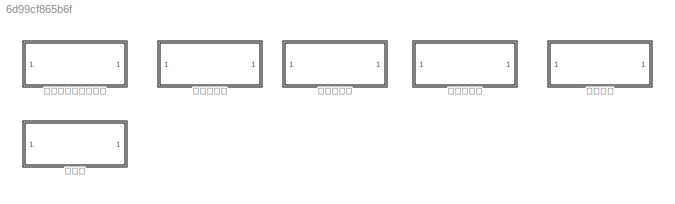
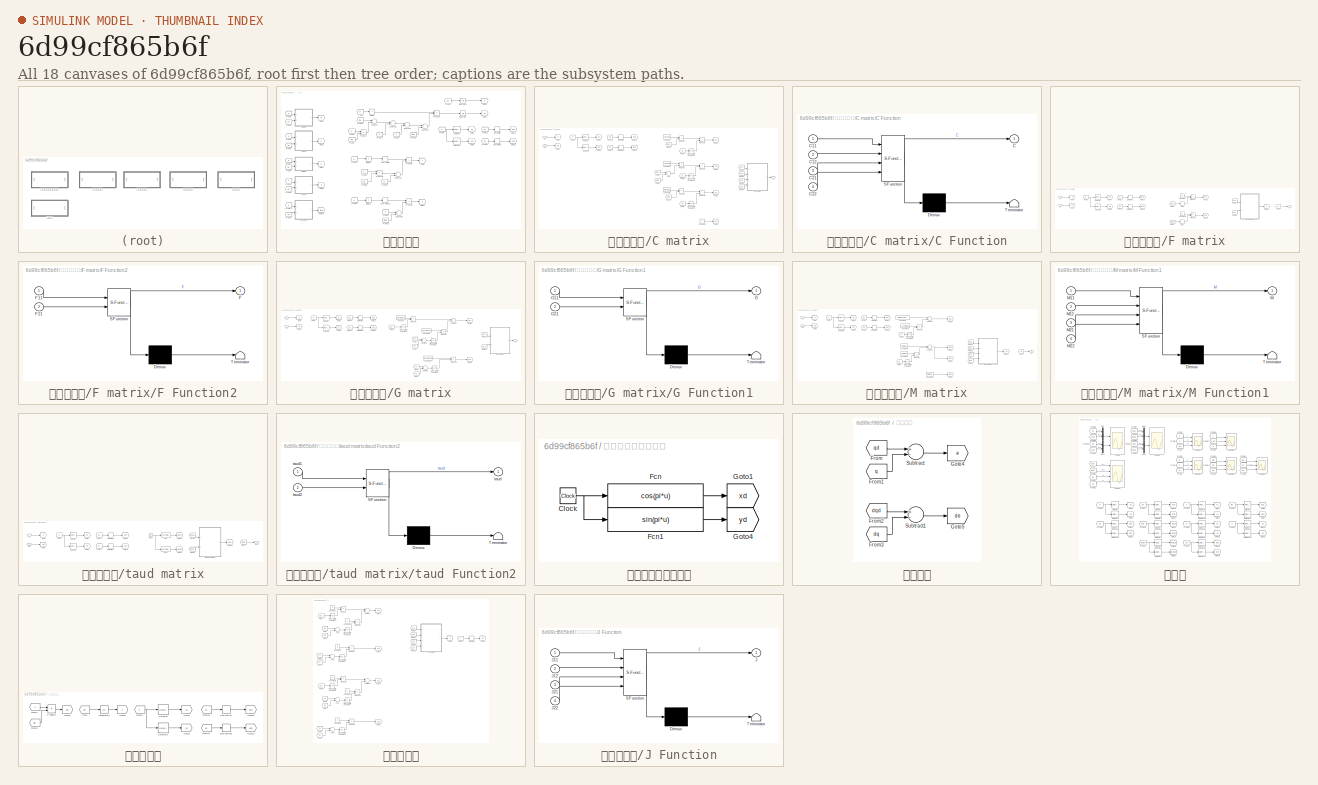
[diagram: thumbnail index - all 18 canvases of the model, root first then tree order]
MODEL slx_6d99cf865b6f
KIND model
CONFIG AbsTol = auto
CONFIG FixedStep = 0.005
CONFIG MaxStep = auto
CONFIG MinStep = auto
CONFIG RelTol = 1e-3
CONFIG SampleTimeConstraint = Unconstrained
CONFIG Solver = ode4
CONFIG SolverMode = Auto
CONFIG SolverName = ode4
CONFIG StartTime = 0.0
CONFIG StopTime = 10
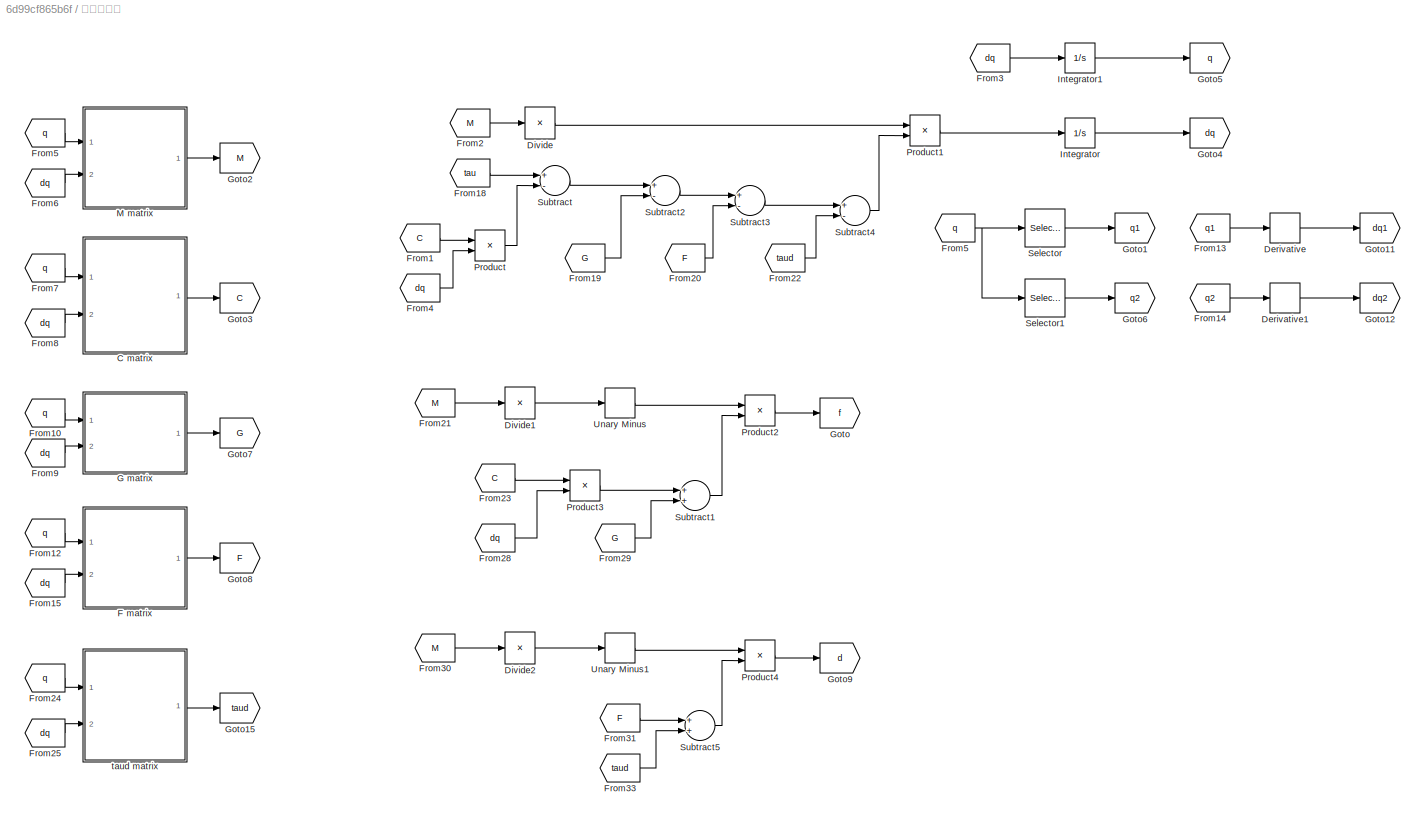
BLOCK [SubSystem] 动力学方程
  Ports = []
  RequestExecContextInheritance = off
  Variant = off
BLOCK [SubSystem] 动力学方程/C matrix
  Ports = [2, 1]
  RequestExecContextInheritance = off
  Variant = off
BLOCK [Sum] 动力学方程/C matrix/Add
  InputSameDT = off
  OutDataTypeStr = Inherit: Inherit via internal rule
  Ports = [2, 1]
  SaturateOnIntegerOverflow = off
BLOCK [Outport] 动力学方程/C matrix/C
  IconDisplay = Port number
BLOCK [SubSystem] 动力学方程/C matrix/C Function
  ErrorFcn = Stateflow.Translate.translate
  PermitHierarchicalResolution = ExplicitOnly
  Ports = [4, 1]
  RequestExecContextInheritance = off
  SFBlockType = MATLAB Function
  TreatAsAtomicUnit = on
  Variant = off
BLOCK [Demux] 动力学方程/C matrix/C Function/ Demux 
  Outputs = 1
  Ports = [1, 1]
BLOCK [S-Function] 动力学方程/C matrix/C Function/ SFunction 
  EnableBusSupport = on
  FunctionName = sf_sfun
  PortCounts = [4 2]
  Ports = [4, 2]
  SFunctionDeploymentMode = off
  Tag = Stateflow S-Function common_2 3
BLOCK [Terminator] 动力学方程/C matrix/C Function/ Terminator 
BLOCK [Outport] 动力学方程/C matrix/C Function/C
  IconDisplay = Port number
BLOCK [Inport] 动力学方程/C matrix/C Function/C11
  IconDisplay = Port number
BLOCK [Inport] 动力学方程/C matrix/C Function/C12
  IconDisplay = Port number
  Port = 2
BLOCK [Inport] 动力学方程/C matrix/C Function/C21
  IconDisplay = Port number
  Port = 3
BLOCK [Inport] 动力学方程/C matrix/C Function/C22
  IconDisplay = Port number
  Port = 4
BLOCK [Constant] 动力学方程/C matrix/Constant
  Value = -para.p3
BLOCK [Constant] 动力学方程/C matrix/Constant1
  Value = -para.p3
BLOCK [Constant] 动力学方程/C matrix/Constant2
  Value = para.p3
BLOCK [Constant] 动力学方程/C matrix/Constant3
  Value = 0
BLOCK [Derivative] 动力学方程/C matrix/Derivative
BLOCK [Derivative] 动力学方程/C matrix/Derivative1
BLOCK [From] 动力学方程/C matrix/From1
  GotoTag = dq2
BLOCK [From] 动力学方程/C matrix/From13
  GotoTag = q1
BLOCK [From] 动力学方程/C matrix/From14
  GotoTag = q2
BLOCK [From] 动力学方程/C matrix/From2
  GotoTag = q2
BLOCK [From] 动力学方程/C matrix/From22
  GotoTag = C12
BLOCK [From] 动力学方程/C matrix/From23
  GotoTag = C21
BLOCK [From] 动力学方程/C matrix/From24
  GotoTag = C22
BLOCK [From] 动力学方程/C matrix/From25
  GotoTag = C11
BLOCK [From] 动力学方程/C matrix/From3
  GotoTag = dq1
BLOCK [From] 动力学方程/C matrix/From4
  GotoTag = dq2
BLOCK [From] 动力学方程/C matrix/From5
  GotoTag = q2
BLOCK [From] 动力学方程/C matrix/From5 
  GotoTag = q
BLOCK [From] 动力学方程/C matrix/From6
  GotoTag = dq1
BLOCK [From] 动力学方程/C matrix/From7
  GotoTag = q2
BLOCK [Goto] 动力学方程/C matrix/Goto
  GotoTag = q
BLOCK [Goto] 动力学方程/C matrix/Goto1
  GotoTag = dq
BLOCK [Goto] 动力学方程/C matrix/Goto11
  GotoTag = dq1
BLOCK [Goto] 动力学方程/C matrix/Goto12
  GotoTag = dq2
BLOCK [Goto] 动力学方程/C matrix/Goto3
  GotoTag = C11
BLOCK [Goto] 动力学方程/C matrix/Goto4
  GotoTag = C12
BLOCK [Goto] 动力学方程/C matrix/Goto5
  GotoTag = C21
BLOCK [Goto] 动力学方程/C matrix/Goto6
  GotoTag = C22
BLOCK [Goto] 动力学方程/C matrix/Goto7
  GotoTag = q1
BLOCK [Goto] 动力学方程/C matrix/Goto8
  GotoTag = q2
BLOCK [Product] 动力学方程/C matrix/Product1
  InputSameDT = off
  OutDataTypeStr = Inherit: Inherit via internal rule
  Ports = [2, 1]
  RndMeth = Floor
  SaturateOnIntegerOverflow = off
BLOCK [Product] 动力学方程/C matrix/Product2
  InputSameDT = off
  OutDataTypeStr = Inherit: Inherit via internal rule
  Ports = [2, 1]
  RndMeth = Floor
  SaturateOnIntegerOverflow = off
BLOCK [Product] 动力学方程/C matrix/Product3
  InputSameDT = off
  OutDataTypeStr = Inherit: Inherit via internal rule
  Ports = [2, 1]
  RndMeth = Floor
  SaturateOnIntegerOverflow = off
BLOCK [Product] 动力学方程/C matrix/Product4
  InputSameDT = off
  OutDataTypeStr = Inherit: Inherit via internal rule
  Ports = [2, 1]
  RndMeth = Floor
  SaturateOnIntegerOverflow = off
BLOCK [Product] 动力学方程/C matrix/Product5
  InputSameDT = off
  OutDataTypeStr = Inherit: Inherit via internal rule
  Ports = [2, 1]
  RndMeth = Floor
  SaturateOnIntegerOverflow = off
BLOCK [Product] 动力学方程/C matrix/Product6
  InputSameDT = off
  OutDataTypeStr = Inherit: Inherit via internal rule
  Ports = [2, 1]
  RndMeth = Floor
  SaturateOnIntegerOverflow = off
BLOCK [Selector] 动力学方程/C matrix/Selector
  IndexOptions = Index vector (dialog)
  Indices = [1]
  InputPortWidth = 2
  OutputSizes = 1
  Ports = [1, 1]
BLOCK [Selector] 动力学方程/C matrix/Selector1
  IndexOptions = Index vector (dialog)
  Indices = [2]
  InputPortWidth = 2
  OutputSizes = 1
  Ports = [1, 1]
BLOCK [Trigonometry] 动力学方程/C matrix/Tri gonometric Function3
  Ports = [1, 1]
BLOCK [Trigonometry] 动力学方程/C matrix/Trigonometric Function1
  Ports = [1, 1]
BLOCK [Trigonometry] 动力学方程/C matrix/Trigonometric Function2
  Ports = [1, 1]
BLOCK [Inport] 动力学方程/C matrix/dq
  IconDisplay = Port number
  Port = 2
BLOCK [Inport] 动力学方程/C matrix/q
  IconDisplay = Port number
BLOCK [Derivative] 动力学方程/Derivative
BLOCK [Derivative] 动力学方程/Derivative1
BLOCK [Product] 动力学方程/Divide
  InputSameDT = off
  Inputs = /
  Multiplication = Matrix(*)
  OutDataTypeStr = Inherit: Inherit via internal rule
  Ports = [1, 1]
  RndMeth = Floor
  SaturateOnIntegerOverflow = off
BLOCK [Product] 动力学方程/Divide1
  InputSameDT = off
  Inputs = /
  Multiplication = Matrix(*)
  OutDataTypeStr = Inherit: Inherit via internal rule
  Ports = [1, 1]
  RndMeth = Floor
  SaturateOnIntegerOverflow = off
BLOCK [Product] 动力学方程/Divide2
  InputSameDT = off
  Inputs = /
  Multiplication = Matrix(*)
  OutDataTypeStr = Inherit: Inherit via internal rule
  Ports = [1, 1]
  RndMeth = Floor
  SaturateOnIntegerOverflow = off
BLOCK [SubSystem] 动力学方程/F matrix
  Ports = [2, 1]
  RequestExecContextInheritance = off
  Variant = off
BLOCK [Constant] 动力学方程/F matrix/Constant
  Value = 0.2
BLOCK [Constant] 动力学方程/F matrix/Constant1
  Value = 0.2
BLOCK [Derivative] 动力学方程/F matrix/Derivative
BLOCK [Derivative] 动力学方程/F matrix/Derivative1
BLOCK [Outport] 动力学方程/F matrix/F
  IconDisplay = Port number
BLOCK [SubSystem] 动力学方程/F matrix/F Function2
  ErrorFcn = Stateflow.Translate.translate
  PermitHierarchicalResolution = ExplicitOnly
  Ports = [2, 1]
  RequestExecContextInheritance = off
  SFBlockType = MATLAB Function
  TreatAsAtomicUnit = on
  Variant = off
BLOCK [Demux] 动力学方程/F matrix/F Function2/ Demux 
  Outputs = 1
  Ports = [1, 1]
BLOCK [S-Function] 动力学方程/F matrix/F Function2/ SFunction 
  EnableBusSupport = on
  FunctionName = sf_sfun
  PortCounts = [2 2]
  Ports = [2, 2]
  SFunctionDeploymentMode = off
  Tag = Stateflow S-Function common_2 5
BLOCK [Terminator] 动力学方程/F matrix/F Function2/ Terminator 
BLOCK [Outport] 动力学方程/F matrix/F Function2/F
  IconDisplay = Port number
BLOCK [Inport] 动力学方程/F matrix/F Function2/F11
  IconDisplay = Port number
BLOCK [Inport] 动力学方程/F matrix/F Function2/F21
  IconDisplay = Port number
  Port = 2
BLOCK [From] 动力学方程/F matrix/From
  GotoTag = F
BLOCK [From] 动力学方程/F matrix/From1
  GotoTag = dq1
BLOCK [From] 动力学方程/F matrix/From13
  GotoTag = q1
BLOCK [From] 动力学方程/F matrix/From14
  GotoTag = q2
BLOCK [From] 动力学方程/F matrix/From19
  GotoTag = F11
BLOCK [From] 动力学方程/F matrix/From2
  GotoTag = dq2
BLOCK [From] 动力学方程/F matrix/From39
  GotoTag = F21
BLOCK [From] 动力学方程/F matrix/From5 
  GotoTag = q
BLOCK [Goto] 动力学方程/F matrix/Goto
  GotoTag = q
BLOCK [Goto] 动力学方程/F matrix/Goto1
  GotoTag = dq
BLOCK [Goto] 动力学方程/F matrix/Goto11
  GotoTag = dq1
BLOCK [Goto] 动力学方程/F matrix/Goto12
  GotoTag = dq2
BLOCK [Goto] 动力学方程/F matrix/Goto2
  GotoTag = F11
BLOCK [Goto] 动力学方程/F matrix/Goto23
  GotoTag = F
BLOCK [Goto] 动力学方程/F matrix/Goto3
  GotoTag = F21
BLOCK [Goto] 动力学方程/F matrix/Goto7
  GotoTag = q1
BLOCK [Goto] 动力学方程/F matrix/Goto8
  GotoTag = q2
BLOCK [Product] 动力学方程/F matrix/Product
  InputSameDT = off
  OutDataTypeStr = Inherit: Inherit via internal rule
  Ports = [2, 1]
  RndMeth = Floor
  SaturateOnIntegerOverflow = off
BLOCK [Product] 动力学方程/F matrix/Product1
  InputSameDT = off
  OutDataTypeStr = Inherit: Inherit via internal rule
  Ports = [2, 1]
  RndMeth = Floor
  SaturateOnIntegerOverflow = off
BLOCK [Selector] 动力学方程/F matrix/Selector
  IndexOptions = Index vector (dialog)
  Indices = [1]
  InputPortWidth = 2
  OutputSizes = 1
  Ports = [1, 1]
BLOCK [Selector] 动力学方程/F matrix/Selector1
  IndexOptions = Index vector (dialog)
  Indices = [2]
  InputPortWidth = 2
  OutputSizes = 1
  Ports = [1, 1]
BLOCK [Signum] 动力学方程/F matrix/Sign
BLOCK [Signum] 动力学方程/F matrix/Sign1
BLOCK [Inport] 动力学方程/F matrix/dq
  IconDisplay = Port number
  Port = 2
BLOCK [Inport] 动力学方程/F matrix/q
  IconDisplay = Port number
BLOCK [From] 动力学方程/From1
  GotoTag = C
  TagVisibility = global
BLOCK [From] 动力学方程/From10
  GotoTag = q
  TagVisibility = global
BLOCK [From] 动力学方程/From12
  GotoTag = q
  TagVisibility = global
BLOCK [From] 动力学方程/From13
  GotoTag = q1
  TagVisibility = global
BLOCK [From] 动力学方程/From14
  GotoTag = q2
  TagVisibility = global
BLOCK [From] 动力学方程/From15
  GotoTag = dq
  TagVisibility = global
BLOCK [From] 动力学方程/From18
  GotoTag = tau
BLOCK [From] 动力学方程/From19
  GotoTag = G
  TagVisibility = global
BLOCK [From] 动力学方程/From2
  GotoTag = M
  TagVisibility = global
BLOCK [From] 动力学方程/From20
  GotoTag = F
  TagVisibility = global
BLOCK [From] 动力学方程/From21
  GotoTag = M
  TagVisibility = global
BLOCK [From] 动力学方程/From22
  GotoTag = taud
  TagVisibility = global
BLOCK [From] 动力学方程/From23
  GotoTag = C
  TagVisibility = global
BLOCK [From] 动力学方程/From24
  GotoTag = q
  TagVisibility = global
BLOCK [From] 动力学方程/From25
  GotoTag = dq
  TagVisibility = global
BLOCK [From] 动力学方程/From28
  GotoTag = dq
  TagVisibility = global
BLOCK [From] 动力学方程/From29
  GotoTag = G
  TagVisibility = global
BLOCK [From] 动力学方程/From3
  GotoTag = dq
  TagVisibility = global
BLOCK [From] 动力学方程/From30
  GotoTag = M
  TagVisibility = global
BLOCK [From] 动力学方程/From31
  GotoTag = F
  TagVisibility = global
BLOCK [From] 动力学方程/From33
  GotoTag = taud
  TagVisibility = global
BLOCK [From] 动力学方程/From4
  GotoTag = dq
  TagVisibility = global
BLOCK [From] 动力学方程/From5
  GotoTag = q
  TagVisibility = global
BLOCK [From] 动力学方程/From5 
  GotoTag = q
  TagVisibility = global
BLOCK [From] 动力学方程/From6
  GotoTag = dq
  TagVisibility = global
BLOCK [From] 动力学方程/From7
  GotoTag = q
  TagVisibility = global
BLOCK [From] 动力学方程/From8
  GotoTag = dq
  TagVisibility = global
BLOCK [From] 动力学方程/From9
  GotoTag = dq
  TagVisibility = global
BLOCK [SubSystem] 动力学方程/G matrix
  Ports = [2, 1]
  RequestExecContextInheritance = off
  Variant = off
BLOCK [Constant] 动力学方程/G matrix/Constant
  Value = para.p4*g
BLOCK [Constant] 动力学方程/G matrix/Constant1
  Value = para.p5*g
BLOCK [Constant] 动力学方程/G matrix/Constant2
  Value = para.p5*g
BLOCK [Derivative] 动力学方程/G matrix/Derivative
BLOCK [Derivative] 动力学方程/G matrix/Derivative1
BLOCK [From] 动力学方程/G matrix/From
  GotoTag = q1
BLOCK [From] 动力学方程/G matrix/From1
  GotoTag = q1
BLOCK [From] 动力学方程/G matrix/From10
  GotoTag = G21
BLOCK [From] 动力学方程/G matrix/From12
  GotoTag = G11
BLOCK [From] 动力学方程/G matrix/From13
  GotoTag = q1
BLOCK [From] 动力学方程/G matrix/From14
  GotoTag = q2
BLOCK [From] 动力学方程/G matrix/From2
  GotoTag = q1
BLOCK [From] 动力学方程/G matrix/From3
  GotoTag = q2
BLOCK [From] 动力学方程/G matrix/From4
  GotoTag = q2
BLOCK [From] 动力学方程/G matrix/From5 
  GotoTag = q
BLOCK [Outport] 动力学方程/G matrix/G
  IconDisplay = Port number
BLOCK [SubSystem] 动力学方程/G matrix/G Function1
  ErrorFcn = Stateflow.Translate.translate
  PermitHierarchicalResolution = ExplicitOnly
  Ports = [2, 1]
  RequestExecContextInheritance = off
  SFBlockType = MATLAB Function
  TreatAsAtomicUnit = on
  Variant = off
BLOCK [Demux] 动力学方程/G matrix/G Function1/ Demux 
  Outputs = 1
  Ports = [1, 1]
BLOCK [S-Function] 动力学方程/G matrix/G Function1/ SFunction 
  EnableBusSupport = on
  FunctionName = sf_sfun
  PortCounts = [2 2]
  Ports = [2, 2]
  SFunctionDeploymentMode = off
  Tag = Stateflow S-Function common_2 2
BLOCK [Terminator] 动力学方程/G matrix/G Function1/ Terminator 
BLOCK [Outport] 动力学方程/G matrix/G Function1/G
  IconDisplay = Port number
BLOCK [Inport] 动力学方程/G matrix/G Function1/G11
  IconDisplay = Port number
BLOCK [Inport] 动力学方程/G matrix/G Function1/G21
  IconDisplay = Port number
  Port = 2
BLOCK [Goto] 动力学方程/G matrix/Goto
  GotoTag = q
BLOCK [Goto] 动力学方程/G matrix/Goto1
  GotoTag = G21
BLOCK [Goto] 动力学方程/G matrix/Goto11
  GotoTag = dq1
BLOCK [Goto] 动力学方程/G matrix/Goto12
  GotoTag = dq2
BLOCK [Goto] 动力学方程/G matrix/Goto2
  GotoTag = G11
BLOCK [Goto] 动力学方程/G matrix/Goto3
  GotoTag = dq
BLOCK [Goto] 动力学方程/G matrix/Goto7
  GotoTag = q1
BLOCK [Goto] 动力学方程/G matrix/Goto8
  GotoTag = q2
BLOCK [Product] 动力学方程/G matrix/Product1
  InputSameDT = off
  OutDataTypeStr = Inherit: Inherit via internal rule
  Ports = [2, 1]
  RndMeth = Floor
  SaturateOnIntegerOverflow = off
BLOCK [Product] 动力学方程/G matrix/Product2
  InputSameDT = off
  OutDataTypeStr = Inherit: Inherit via internal rule
  Ports = [2, 1]
  RndMeth = Floor
  SaturateOnIntegerOverflow = off
BLOCK [Product] 动力学方程/G matrix/Product3
  InputSameDT = off
  OutDataTypeStr = Inherit: Inherit via internal rule
  Ports = [2, 1]
  RndMeth = Floor
  SaturateOnIntegerOverflow = off
BLOCK [Selector] 动力学方程/G matrix/Selector
  IndexOptions = Index vector (dialog)
  Indices = [1]
  InputPortWidth = 2
  OutputSizes = 1
  Ports = [1, 1]
BLOCK [Selector] 动力学方程/G matrix/Selector1
  IndexOptions = Index vector (dialog)
  Indices = [2]
  InputPortWidth = 2
  OutputSizes = 1
  Ports = [1, 1]
BLOCK [Sum] 动力学方程/G matrix/Subtract1
  InputSameDT = off
  OutDataTypeStr = Inherit: Inherit via internal rule
  Ports = [2, 1]
  SaturateOnIntegerOverflow = off
BLOCK [Sum] 动力学方程/G matrix/Subtract4
  InputSameDT = off
  OutDataTypeStr = Inherit: Inherit via internal rule
  Ports = [2, 1]
  SaturateOnIntegerOverflow = off
BLOCK [Sum] 动力学方程/G matrix/Subtract5
  InputSameDT = off
  OutDataTypeStr = Inherit: Inherit via internal rule
  Ports = [2, 1]
  SaturateOnIntegerOverflow = off
BLOCK [Trigonometry] 动力学方程/G matrix/Trigonometric Function1
  Operator = cos
  Ports = [1, 1]
BLOCK [Trigonometry] 动力学方程/G matrix/Trigonometric Function2
  Operator = cos
  Ports = [1, 1]
BLOCK [Trigonometry] 动力学方程/G matrix/Trigonometric Function3
  Operator = cos
  Ports = [1, 1]
BLOCK [Inport] 动力学方程/G matrix/dq
  IconDisplay = Port number
  Port = 2
BLOCK [Inport] 动力学方程/G matrix/q
  IconDisplay = Port number
BLOCK [Goto] 动力学方程/Goto
  GotoTag = f
BLOCK [Goto] 动力学方程/Goto1
  GotoTag = q1
  TagVisibility = global
BLOCK [Goto] 动力学方程/Goto11
  GotoTag = dq1
  TagVisibility = global
BLOCK [Goto] 动力学方程/Goto12
  GotoTag = dq2
  TagVisibility = global
BLOCK [Goto] 动力学方程/Goto15
  GotoTag = taud
  TagVisibility = global
BLOCK [Goto] 动力学方程/Goto2
  GotoTag = M
  TagVisibility = global
BLOCK [Goto] 动力学方程/Goto3
  GotoTag = C
  TagVisibility = global
BLOCK [Goto] 动力学方程/Goto4
  GotoTag = dq
  TagVisibility = global
BLOCK [Goto] 动力学方程/Goto5
  GotoTag = q
  TagVisibility = global
BLOCK [Goto] 动力学方程/Goto6
  GotoTag = q2
  TagVisibility = global
BLOCK [Goto] 动力学方程/Goto7
  GotoTag = G
  TagVisibility = global
BLOCK [Goto] 动力学方程/Goto8
  GotoTag = F
  TagVisibility = global
BLOCK [Goto] 动力学方程/Goto9
  GotoTag = d
BLOCK [Integrator] 动力学方程/Integrator
  InitialCondition = dq_init
  Ports = [1, 1]
BLOCK [Integrator] 动力学方程/Integrator1
  InitialCondition = q_init
  Ports = [1, 1]
BLOCK [SubSystem] 动力学方程/M matrix
  Ports = [2, 1]
  RequestExecContextInheritance = off
  Variant = off
BLOCK [Constant] 动力学方程/M matrix/Constant1
  Value = 2*para.p3
BLOCK [Constant] 动力学方程/M matrix/Constant2
  Value = para.p1+para.p2
BLOCK [Constant] 动力学方程/M matrix/Constant3
  Value = para.p2
BLOCK [Constant] 动力学方程/M matrix/Constant4
  Value = para.p3
BLOCK [Constant] 动力学方程/M matrix/Constant5
  Value = para.p2
BLOCK [Derivative] 动力学方程/M matrix/Derivative
BLOCK [Derivative] 动力学方程/M matrix/Derivative1
BLOCK [From] 动力学方程/M matrix/From
  GotoTag = M
BLOCK [From] 动力学方程/M matrix/From1
  GotoTag = q2
BLOCK [From] 动力学方程/M matrix/From13
  GotoTag = q1
BLOCK [From] 动力学方程/M matrix/From14
  GotoTag = q2
BLOCK [From] 动力学方程/M matrix/From32
  GotoTag = M11
BLOCK [From] 动力学方程/M matrix/From33
  GotoTag = M12
BLOCK [From] 动力学方程/M matrix/From34
  GotoTag = M21
BLOCK [From] 动力学方程/M matrix/From35
  GotoTag = M22
BLOCK [From] 动力学方程/M matrix/From5
  GotoTag = q2
BLOCK [From] 动力学方程/M matrix/From5 
  GotoTag = q
BLOCK [Goto] 动力学方程/M matrix/Goto
  GotoTag = q
BLOCK [Goto] 动力学方程/M matrix/Goto1
  GotoTag = M11
BLOCK [Goto] 动力学方程/M matrix/Goto11
  GotoTag = dq1
BLOCK [Goto] 动力学方程/M matrix/Goto12
  GotoTag = dq2
BLOCK [Goto] 动力学方程/M matrix/Goto17
  GotoTag = M
BLOCK [Goto] 动力学方程/M matrix/Goto2
  GotoTag = M12
BLOCK [Goto] 动力学方程/M matrix/Goto3
  GotoTag = M21
BLOCK [Goto] 动力学方程/M matrix/Goto4
  GotoTag = M22
BLOCK [Goto] 动力学方程/M matrix/Goto5
  GotoTag = dq
BLOCK [Goto] 动力学方程/M matrix/Goto7
  GotoTag = q1
BLOCK [Goto] 动力学方程/M matrix/Goto8
  GotoTag = q2
BLOCK [Outport] 动力学方程/M matrix/M
  IconDisplay = Port number
BLOCK [SubSystem] 动力学方程/M matrix/M Function1
  ErrorFcn = Stateflow.Translate.translate
  PermitHierarchicalResolution = ExplicitOnly
  Ports = [4, 1]
  RequestExecContextInheritance = off
  SFBlockType = MATLAB Function
  TreatAsAtomicUnit = on
  Variant = off
BLOCK [Demux] 动力学方程/M matrix/M Function1/ Demux 
  Outputs = 1
  Ports = [1, 1]
BLOCK [S-Function] 动力学方程/M matrix/M Function1/ SFunction 
  EnableBusSupport = on
  FunctionName = sf_sfun
  PortCounts = [4 2]
  Ports = [4, 2]
  SFunctionDeploymentMode = off
  Tag = Stateflow S-Function common_2 4
BLOCK [Terminator] 动力学方程/M matrix/M Function1/ Terminator 
BLOCK [Outport] 动力学方程/M matrix/M Function1/M
  IconDisplay = Port number
BLOCK [Inport] 动力学方程/M matrix/M Function1/M11
  IconDisplay = Port number
BLOCK [Inport] 动力学方程/M matrix/M Function1/M12
  IconDisplay = Port number
  Port = 2
BLOCK [Inport] 动力学方程/M matrix/M Function1/M21
  IconDisplay = Port number
  Port = 3
BLOCK [Inport] 动力学方程/M matrix/M Function1/M22
  IconDisplay = Port number
  Port = 4
BLOCK [Product] 动力学方程/M matrix/Product1
  InputSameDT = off
  OutDataTypeStr = Inherit: Inherit via internal rule
  Ports = [2, 1]
  RndMeth = Floor
  SaturateOnIntegerOverflow = off
BLOCK [Product] 动力学方程/M matrix/Product2
  InputSameDT = off
  OutDataTypeStr = Inherit: Inherit via internal rule
  Ports = [2, 1]
  RndMeth = Floor
  SaturateOnIntegerOverflow = off
BLOCK [Selector] 动力学方程/M matrix/Selector
  IndexOptions = Index vector (dialog)
  Indices = [1]
  InputPortWidth = 2
  OutputSizes = 1
  Ports = [1, 1]
BLOCK [Selector] 动力学方程/M matrix/Selector1
  IndexOptions = Index vector (dialog)
  Indices = [2]
  InputPortWidth = 2
  OutputSizes = 1
  Ports = [1, 1]
BLOCK [Sum] 动力学方程/M matrix/Subtract1
  InputSameDT = off
  OutDataTypeStr = Inherit: Inherit via internal rule
  Ports = [2, 1]
  SaturateOnIntegerOverflow = off
BLOCK [Sum] 动力学方程/M matrix/Subtract2
  InputSameDT = off
  OutDataTypeStr = Inherit: Inherit via internal rule
  Ports = [2, 1]
  SaturateOnIntegerOverflow = off
BLOCK [Trigonometry] 动力学方程/M matrix/Trigonometric Function1
  Operator = cos
  Ports = [1, 1]
BLOCK [Trigonometry] 动力学方程/M matrix/Trigonometric Function8
  Operator = cos
  Ports = [1, 1]
BLOCK [Inport] 动力学方程/M matrix/dq
  IconDisplay = Port number
  Port = 2
BLOCK [Inport] 动力学方程/M matrix/q
  IconDisplay = Port number
BLOCK [Product] 动力学方程/Product
  InputSameDT = off
  Multiplication = Matrix(*)
  OutDataTypeStr = Inherit: Inherit via internal rule
  Ports = [2, 1]
  RndMeth = Floor
  SaturateOnIntegerOverflow = off
BLOCK [Product] 动力学方程/Product1
  InputSameDT = off
  Multiplication = Matrix(*)
  OutDataTypeStr = Inherit: Inherit via internal rule
  Ports = [2, 1]
  RndMeth = Floor
  SaturateOnIntegerOverflow = off
BLOCK [Product] 动力学方程/Product2
  InputSameDT = off
  Multiplication = Matrix(*)
  OutDataTypeStr = Inherit: Inherit via internal rule
  Ports = [2, 1]
  RndMeth = Floor
  SaturateOnIntegerOverflow = off
BLOCK [Product] 动力学方程/Product3
  InputSameDT = off
  Multiplication = Matrix(*)
  OutDataTypeStr = Inherit: Inherit via internal rule
  Ports = [2, 1]
  RndMeth = Floor
  SaturateOnIntegerOverflow = off
BLOCK [Product] 动力学方程/Product4
  InputSameDT = off
  Multiplication = Matrix(*)
  OutDataTypeStr = Inherit: Inherit via internal rule
  Ports = [2, 1]
  RndMeth = Floor
  SaturateOnIntegerOverflow = off
BLOCK [Selector] 动力学方程/Selector
  IndexOptions = Index vector (dialog)
  Indices = [1]
  InputPortWidth = 2
  OutputSizes = 1
  Ports = [1, 1]
BLOCK [Selector] 动力学方程/Selector1
  IndexOptions = Index vector (dialog)
  Indices = [2]
  InputPortWidth = 2
  OutputSizes = 1
  Ports = [1, 1]
BLOCK [Sum] 动力学方程/Subtract
  InputSameDT = off
  Inputs = +-
  OutDataTypeStr = Inherit: Inherit via internal rule
  Ports = [2, 1]
  SaturateOnIntegerOverflow = off
BLOCK [Sum] 动力学方程/Subtract1
  InputSameDT = off
  OutDataTypeStr = Inherit: Inherit via internal rule
  Ports = [2, 1]
  SaturateOnIntegerOverflow = off
BLOCK [Sum] 动力学方程/Subtract2
  InputSameDT = off
  Inputs = +-
  OutDataTypeStr = Inherit: Inherit via internal rule
  Ports = [2, 1]
  SaturateOnIntegerOverflow = off
BLOCK [Sum] 动力学方程/Subtract3
  InputSameDT = off
  Inputs = +-
  OutDataTypeStr = Inherit: Inherit via internal rule
  Ports = [2, 1]
  SaturateOnIntegerOverflow = off
BLOCK [Sum] 动力学方程/Subtract4
  InputSameDT = off
  Inputs = +-
  OutDataTypeStr = Inherit: Inherit via internal rule
  Ports = [2, 1]
  SaturateOnIntegerOverflow = off
BLOCK [Sum] 动力学方程/Subtract5
  InputSameDT = off
  OutDataTypeStr = Inherit: Inherit via internal rule
  Ports = [2, 1]
  SaturateOnIntegerOverflow = off
BLOCK [UnaryMinus] 动力学方程/Unary Minus
BLOCK [UnaryMinus] 动力学方程/Unary Minus1
BLOCK [SubSystem] 动力学方程/taud matrix
  Ports = [2, 1]
  RequestExecContextInheritance = off
  Variant = off
BLOCK [Clock] 动力学方程/taud matrix/Clock
BLOCK [Derivative] 动力学方程/taud matrix/Derivative
BLOCK [Derivative] 动力学方程/taud matrix/Derivative1
BLOCK [Fcn] 动力学方程/taud matrix/Fcn
  Expr = 0.1*sin(u)
BLOCK [Fcn] 动力学方程/taud matrix/Fcn1
  Expr = 0.1*sin(u)
BLOCK [From] 动力学方程/taud matrix/From
  GotoTag = taud
BLOCK [From] 动力学方程/taud matrix/From13
  GotoTag = q1
BLOCK [From] 动力学方程/taud matrix/From14
  GotoTag = q2
BLOCK [From] 动力学方程/taud matrix/From19
  GotoTag = taud1
BLOCK [From] 动力学方程/taud matrix/From39
  GotoTag = taud2
BLOCK [From] 动力学方程/taud matrix/From5 
  GotoTag = q
BLOCK [Goto] 动力学方程/taud matrix/Goto
  GotoTag = q
BLOCK [Goto] 动力学方程/taud matrix/Goto1
  GotoTag = dq
BLOCK [Goto] 动力学方程/taud matrix/Goto11
  GotoTag = dq1
BLOCK [Goto] 动力学方程/taud matrix/Goto12
  GotoTag = dq2
BLOCK [Goto] 动力学方程/taud matrix/Goto21
  GotoTag = taud1
BLOCK [Goto] 动力学方程/taud matrix/Goto22
  GotoTag = taud2
BLOCK [Goto] 动力学方程/taud matrix/Goto23
  GotoTag = taud
BLOCK [Goto] 动力学方程/taud matrix/Goto7
  GotoTag = q1
BLOCK [Goto] 动力学方程/taud matrix/Goto8
  GotoTag = q2
BLOCK [Selector] 动力学方程/taud matrix/Selector
  IndexOptions = Index vector (dialog)
  Indices = [1]
  InputPortWidth = 2
  OutputSizes = 1
  Ports = [1, 1]
BLOCK [Selector] 动力学方程/taud matrix/Selector1
  IndexOptions = Index vector (dialog)
  Indices = [2]
  InputPortWidth = 2
  OutputSizes = 1
  Ports = [1, 1]
BLOCK [Inport] 动力学方程/taud matrix/dq
  IconDisplay = Port number
  Port = 2
BLOCK [Inport] 动力学方程/taud matrix/q
  IconDisplay = Port number
BLOCK [Outport] 动力学方程/taud matrix/taud
  IconDisplay = Port number
BLOCK [SubSystem] 动力学方程/taud matrix/taud Function2
  ErrorFcn = Stateflow.Translate.translate
  PermitHierarchicalResolution = ExplicitOnly
  Ports = [2, 1]
  RequestExecContextInheritance = off
  SFBlockType = MATLAB Function
  TreatAsAtomicUnit = on
  Variant = off
BLOCK [Demux] 动力学方程/taud matrix/taud Function2/ Demux 
  Outputs = 1
  Ports = [1, 1]
BLOCK [S-Function] 动力学方程/taud matrix/taud Function2/ SFunction 
  EnableBusSupport = on
  FunctionName = sf_sfun
  PortCounts = [2 2]
  Ports = [2, 2]
  SFunctionDeploymentMode = off
  Tag = Stateflow S-Function common_2 6
BLOCK [Terminator] 动力学方程/taud matrix/taud Function2/ Terminator 
BLOCK [Outport] 动力学方程/taud matrix/taud Function2/taud
  IconDisplay = Port number
BLOCK [Inport] 动力学方程/taud matrix/taud Function2/taud1
  IconDisplay = Port number
BLOCK [Inport] 动力学方程/taud matrix/taud Function2/taud2
  IconDisplay = Port number
  Port = 2
BLOCK [SubSystem] 末端执行器期望轨迹
  Ports = []
  RequestExecContextInheritance = off
  Variant = off
BLOCK [Clock] 末端执行器期望轨迹/Clock
BLOCK [Fcn] 末端执行器期望轨迹/Fcn
  Expr = cos(pi*u)
BLOCK [Fcn] 末端执行器期望轨迹/Fcn1
  Expr = sin(pi*u)
BLOCK [Goto] 末端执行器期望轨迹/Goto1
  GotoTag = xd
  TagVisibility = global
BLOCK [Goto] 末端执行器期望轨迹/Goto4
  GotoTag = yd
  TagVisibility = global
BLOCK [SubSystem] 滑模函数
  Ports = []
  RequestExecContextInheritance = off
  Variant = off
BLOCK [From] 滑模函数/From
  GotoTag = qd
BLOCK [From] 滑模函数/From1
  GotoTag = q
  TagVisibility = global
BLOCK [From] 滑模函数/From2
  GotoTag = dqd
BLOCK [From] 滑模函数/From3
  GotoTag = dq
  TagVisibility = global
BLOCK [Goto] 滑模函数/Goto4
  GotoTag = e
  TagVisibility = global
BLOCK [Goto] 滑模函数/Goto5
  GotoTag = de
  TagVisibility = global
BLOCK [Sum] 滑模函数/Subtract
  InputSameDT = off
  Inputs = +-
  OutDataTypeStr = Inherit: Inherit via internal rule
  Ports = [2, 1]
  SaturateOnIntegerOverflow = off
BLOCK [Sum] 滑模函数/Subtract1
  InputSameDT = off
  Inputs = +-
  OutDataTypeStr = Inherit: Inherit via internal rule
  Ports = [2, 1]
  SaturateOnIntegerOverflow = off
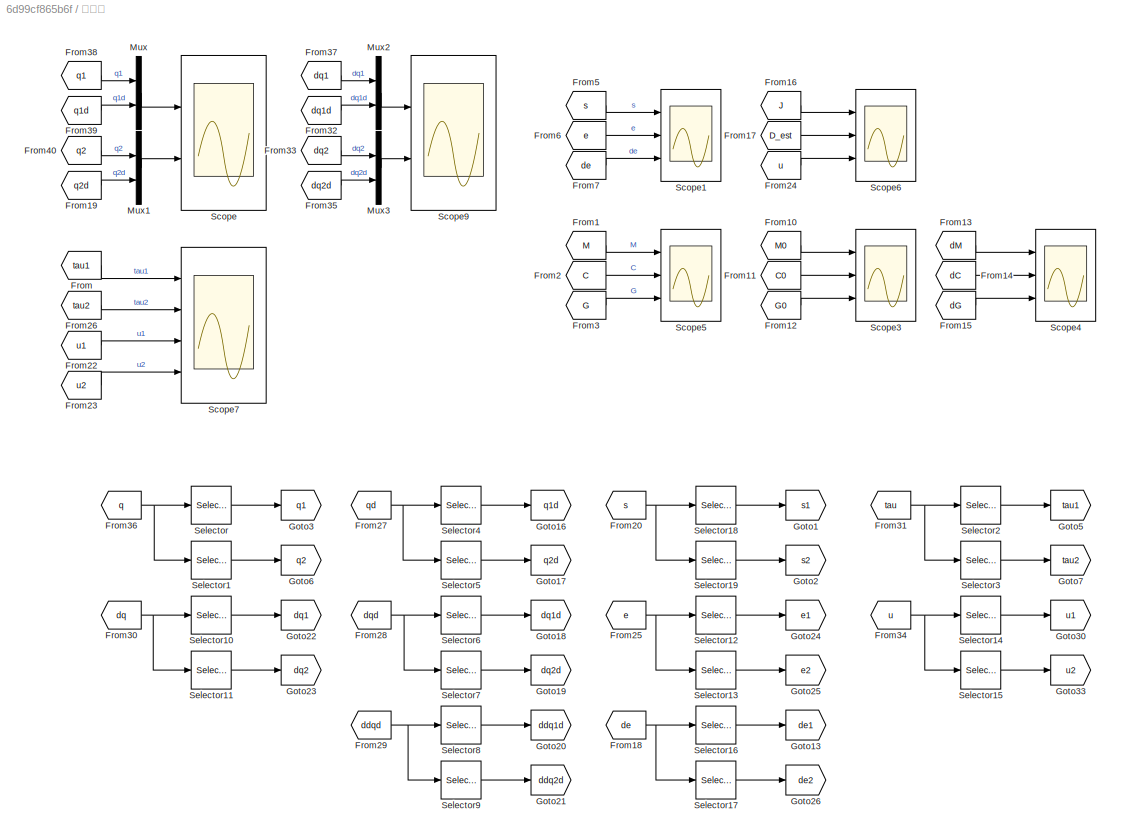
BLOCK [SubSystem] 观察箱
  Ports = []
  RequestExecContextInheritance = off
  Variant = off
BLOCK [From] 观察箱/From
  GotoTag = tau1
  TagVisibility = global
BLOCK [From] 观察箱/From1
  GotoTag = M
  TagVisibility = global
BLOCK [From] 观察箱/From10
  GotoTag = M0
BLOCK [From] 观察箱/From11
  GotoTag = C0
BLOCK [From] 观察箱/From12
  GotoTag = G0
BLOCK [From] 观察箱/From13
  GotoTag = dM
BLOCK [From] 观察箱/From14
  GotoTag = dC
BLOCK [From] 观察箱/From15
  GotoTag = dG
BLOCK [From] 观察箱/From16
  GotoTag = J
  TagVisibility = global
BLOCK [From] 观察箱/From17
  GotoTag = D_est
BLOCK [From] 观察箱/From18
  GotoTag = de
  TagVisibility = global
BLOCK [From] 观察箱/From19
  GotoTag = q2d
BLOCK [From] 观察箱/From2
  GotoTag = C
  TagVisibility = global
BLOCK [From] 观察箱/From20
  GotoTag = s
BLOCK [From] 观察箱/From22
  GotoTag = u1
BLOCK [From] 观察箱/From23
  GotoTag = u2
BLOCK [From] 观察箱/From24
  GotoTag = u
BLOCK [From] 观察箱/From25
  GotoTag = e
  TagVisibility = global
BLOCK [From] 观察箱/From26
  GotoTag = tau2
  TagVisibility = global
BLOCK [From] 观察箱/From27
  GotoTag = qd
BLOCK [From] 观察箱/From28
  GotoTag = dqd
BLOCK [From] 观察箱/From29
  GotoTag = ddqd
BLOCK [From] 观察箱/From3
  GotoTag = G
  TagVisibility = global
BLOCK [From] 观察箱/From30
  GotoTag = dq
  TagVisibility = global
BLOCK [From] 观察箱/From31
  GotoTag = tau
BLOCK [From] 观察箱/From32
  GotoTag = dq1d
BLOCK [From] 观察箱/From33
  GotoTag = dq2
BLOCK [From] 观察箱/From34
  GotoTag = u
BLOCK [From] 观察箱/From35
  GotoTag = dq2d
BLOCK [From] 观察箱/From36
  GotoTag = q
  TagVisibility = global
BLOCK [From] 观察箱/From37
  GotoTag = dq1
BLOCK [From] 观察箱/From38
  GotoTag = q1
BLOCK [From] 观察箱/From39
  GotoTag = q1d
BLOCK [From] 观察箱/From40
  GotoTag = q2
BLOCK [From] 观察箱/From5
  GotoTag = s
BLOCK [From] 观察箱/From6
  GotoTag = e
  TagVisibility = global
BLOCK [From] 观察箱/From7
  GotoTag = de
  TagVisibility = global
BLOCK [Goto] 观察箱/Goto1
  GotoTag = s1
BLOCK [Goto] 观察箱/Goto13
  GotoTag = de1
BLOCK [Goto] 观察箱/Goto16
  GotoTag = q1d
BLOCK [Goto] 观察箱/Goto17
  GotoTag = q2d
BLOCK [Goto] 观察箱/Goto18
  GotoTag = dq1d
BLOCK [Goto] 观察箱/Goto19
  GotoTag = dq2d
BLOCK [Goto] 观察箱/Goto2
  GotoTag = s2
BLOCK [Goto] 观察箱/Goto20
  GotoTag = ddq1d
BLOCK [Goto] 观察箱/Goto21
  GotoTag = ddq2d
BLOCK [Goto] 观察箱/Goto22
  GotoTag = dq1
BLOCK [Goto] 观察箱/Goto23
  GotoTag = dq2
BLOCK [Goto] 观察箱/Goto24
  GotoTag = e1
BLOCK [Goto] 观察箱/Goto25
  GotoTag = e2
BLOCK [Goto] 观察箱/Goto26
  GotoTag = de2
BLOCK [Goto] 观察箱/Goto3
  GotoTag = q1
BLOCK [Goto] 观察箱/Goto30
  GotoTag = u1
BLOCK [Goto] 观察箱/Goto33
  GotoTag = u2
BLOCK [Goto] 观察箱/Goto5
  GotoTag = tau1
  TagVisibility = global
BLOCK [Goto] 观察箱/Goto6
  GotoTag = q2
BLOCK [Goto] 观察箱/Goto7
  GotoTag = tau2
  TagVisibility = global
BLOCK [Mux] 观察箱/Mux
  DisplayOption = bar
  Inputs = 2
  Ports = [2, 1]
BLOCK [Mux] 观察箱/Mux1
  DisplayOption = bar
  Inputs = 2
  Ports = [2, 1]
BLOCK [Mux] 观察箱/Mux2
  DisplayOption = bar
  Inputs = 2
  Ports = [2, 1]
BLOCK [Mux] 观察箱/Mux3
  DisplayOption = bar
  Inputs = 2
  Ports = [2, 1]
BLOCK [Scope] 观察箱/Scope
  NumInputPorts = 2
  Ports = [2]
  ScopeSpecificationString = Simulink.scopes.TimeScopeBlockCfg('CurrentConfiguration', extmgr.ConfigurationSet(extmgr.Configuration('Core','General UI',true),extmgr.Configuration('Core','Source UI',true),extmgr.Configuration('Sources','WiredSimulink',true,'DataLoggingVariableName','ScopeData1'),extmgr.Configuration('Visuals','Time Domain',true,'SerializedDisplays',{struct('MinYLimReal','-3.38604','MaxYLimReal','0.37623','YLab...<+1990ch>
BLOCK [Scope] 观察箱/Scope1
  NumInputPorts = 3
  Ports = [3]
  ScopeSpecificationString = Simulink.scopes.TimeScopeBlockCfg('CurrentConfiguration', extmgr.ConfigurationSet(extmgr.Configuration('Core','General UI',true),extmgr.Configuration('Core','Source UI',true),extmgr.Configuration('Sources','WiredSimulink',true,'DataLoggingVariableName','ScopeData1'),extmgr.Configuration('Visuals','Time Domain',true,'SerializedDisplays',{struct('MinYLimReal','-2.28387','MaxYLimReal','5.14265','YLab...<+2703ch>
BLOCK [Scope] 观察箱/Scope3
  NumInputPorts = 3
  Ports = [3]
  ScopeSpecificationString = C++SS(StrPVP('SaveName','ScopeData3'),StrPVP('LimitDataPoints','on'),StrPVP('DataFormat','Array'),StrPVP('Decimation','1'),StrPVP('BlockParamSampleInput','off'))
BLOCK [Scope] 观察箱/Scope4
  NumInputPorts = 3
  Ports = [3]
  ScopeSpecificationString = Simulink.scopes.TimeScopeBlockCfg('CurrentConfiguration', extmgr.ConfigurationSet(extmgr.Configuration('Core','General UI',true),extmgr.Configuration('Core','Source UI',true),extmgr.Configuration('Sources','WiredSimulink',true,'DataLoggingVariableName','ScopeData4'),extmgr.Configuration('Visuals','Time Domain',true,'SerializedDisplays',{struct('MinYLimReal','0.144','MaxYLimReal','4.784','YLabelRea...<+2878ch>
BLOCK [Scope] 观察箱/Scope5
  NumInputPorts = 3
  Ports = [3]
  ScopeSpecificationString = Simulink.scopes.TimeScopeBlockCfg('CurrentConfiguration', extmgr.ConfigurationSet(extmgr.Configuration('Core','General UI',true),extmgr.Configuration('Core','Source UI',true),extmgr.Configuration('Sources','WiredSimulink',true,'DataLoggingVariableName','ScopeData5'),extmgr.Configuration('Visuals','Time Domain',true,'SerializedDisplays',{struct('MinYLimReal','0.18','MaxYLimReal','5.98','YLabelReal'...<+2715ch>
BLOCK [Scope] 观察箱/Scope6
  NumInputPorts = 3
  Ports = [3]
  ScopeSpecificationString = Simulink.scopes.TimeScopeBlockCfg('CurrentConfiguration', extmgr.ConfigurationSet(extmgr.Configuration('Core','General UI',true),extmgr.Configuration('Core','Source UI',true),extmgr.Configuration('Sources','WiredSimulink',true,'DataLoggingVariableName','ScopeData6'),extmgr.Configuration('Visuals','Time Domain',true,'SerializedDisplays',{struct('MinYLimReal','-2.48678','MaxYLimReal','2.49853','YLab...<+2732ch>
BLOCK [Scope] 观察箱/Scope7
  NumInputPorts = 4
  Ports = [4]
  ScopeSpecificationString = Simulink.scopes.TimeScopeBlockCfg('CurrentConfiguration', extmgr.ConfigurationSet(extmgr.Configuration('Core','General UI',true),extmgr.Configuration('Core','Source UI',true),extmgr.Configuration('Sources','WiredSimulink',true,'DataLoggingVariableName','ScopeData3'),extmgr.Configuration('Visuals','Time Domain',true,'SerializedDisplays',{struct('MinYLimReal','-1.00000','MaxYLimReal','1.00000','YLab...<+3362ch>
BLOCK [Scope] 观察箱/Scope9
  NumInputPorts = 2
  Ports = [2]
  ScopeSpecificationString = Simulink.scopes.TimeScopeBlockCfg('CurrentConfiguration', extmgr.ConfigurationSet(extmgr.Configuration('Core','General UI',true),extmgr.Configuration('Core','Source UI',true),extmgr.Configuration('Sources','WiredSimulink',true,'DataLoggingVariableName','ScopeData5'),extmgr.Configuration('Visuals','Time Domain',true,'SerializedDisplays',{struct('MinYLimReal','-4.22896','MaxYLimReal','3.96054','YLab...<+2021ch>
BLOCK [Selector] 观察箱/Selector
  IndexOptions = Index vector (dialog)
  Indices = [1]
  InputPortWidth = 2
  OutputSizes = 1
  Ports = [1, 1]
BLOCK [Selector] 观察箱/Selector1
  IndexOptions = Index vector (dialog)
  Indices = [2]
  InputPortWidth = 2
  OutputSizes = 1
  Ports = [1, 1]
BLOCK [Selector] 观察箱/Selector10
  IndexOptions = Index vector (dialog)
  Indices = [1]
  InputPortWidth = 2
  OutputSizes = 1
  Ports = [1, 1]
BLOCK [Selector] 观察箱/Selector11
  IndexOptions = Index vector (dialog)
  Indices = [2]
  InputPortWidth = 2
  OutputSizes = 1
  Ports = [1, 1]
BLOCK [Selector] 观察箱/Selector12
  IndexOptions = Index vector (dialog)
  Indices = [1]
  InputPortWidth = 2
  OutputSizes = 1
  Ports = [1, 1]
BLOCK [Selector] 观察箱/Selector13
  IndexOptions = Index vector (dialog)
  Indices = [2]
  InputPortWidth = 2
  OutputSizes = 1
  Ports = [1, 1]
BLOCK [Selector] 观察箱/Selector14
  IndexOptions = Index vector (dialog)
  Indices = [1]
  InputPortWidth = 2
  OutputSizes = 1
  Ports = [1, 1]
BLOCK [Selector] 观察箱/Selector15
  IndexOptions = Index vector (dialog)
  Indices = [2]
  InputPortWidth = 2
  OutputSizes = 1
  Ports = [1, 1]
BLOCK [Selector] 观察箱/Selector16
  IndexOptions = Index vector (dialog)
  Indices = [1]
  InputPortWidth = 2
  OutputSizes = 1
  Ports = [1, 1]
BLOCK [Selector] 观察箱/Selector17
  IndexOptions = Index vector (dialog)
  Indices = [2]
  InputPortWidth = 2
  OutputSizes = 1
  Ports = [1, 1]
BLOCK [Selector] 观察箱/Selector18
  IndexOptions = Index vector (dialog)
  Indices = [1]
  InputPortWidth = 2
  OutputSizes = 1
  Ports = [1, 1]
BLOCK [Selector] 观察箱/Selector19
  IndexOptions = Index vector (dialog)
  Indices = [2]
  InputPortWidth = 2
  OutputSizes = 1
  Ports = [1, 1]
BLOCK [Selector] 观察箱/Selector2
  IndexOptions = Index vector (dialog)
  Indices = [1]
  InputPortWidth = 2
  OutputSizes = 1
  Ports = [1, 1]
BLOCK [Selector] 观察箱/Selector3
  IndexOptions = Index vector (dialog)
  Indices = [2]
  InputPortWidth = 2
  OutputSizes = 1
  Ports = [1, 1]
BLOCK [Selector] 观察箱/Selector4
  IndexOptions = Index vector (dialog)
  Indices = [1]
  InputPortWidth = 2
  OutputSizes = 1
  Ports = [1, 1]
BLOCK [Selector] 观察箱/Selector5
  IndexOptions = Index vector (dialog)
  Indices = [2]
  InputPortWidth = 2
  OutputSizes = 1
  Ports = [1, 1]
BLOCK [Selector] 观察箱/Selector6
  IndexOptions = Index vector (dialog)
  Indices = [1]
  InputPortWidth = 2
  OutputSizes = 1
  Ports = [1, 1]
BLOCK [Selector] 观察箱/Selector7
  IndexOptions = Index vector (dialog)
  Indices = [2]
  InputPortWidth = 2
  OutputSizes = 1
  Ports = [1, 1]
BLOCK [Selector] 观察箱/Selector8
  IndexOptions = Index vector (dialog)
  Indices = [1]
  InputPortWidth = 2
  OutputSizes = 1
  Ports = [1, 1]
BLOCK [Selector] 观察箱/Selector9
  IndexOptions = Index vector (dialog)
  Indices = [2]
  InputPortWidth = 2
  OutputSizes = 1
  Ports = [1, 1]
BLOCK [SubSystem] 运动学方程
  Ports = []
  RequestExecContextInheritance = off
  Variant = off
BLOCK [Derivative] 运动学方程/Derivative
BLOCK [Derivative] 运动学方程/Derivative1
BLOCK [From] 运动学方程/From
  GotoTag = dx
  TagVisibility = global
BLOCK [From] 运动学方程/From1
  GotoTag = J
  TagVisibility = global
BLOCK [From] 运动学方程/From13
  GotoTag = x1
  TagVisibility = global
BLOCK [From] 运动学方程/From14
  GotoTag = x2
  TagVisibility = global
BLOCK [From] 运动学方程/From2
  GotoTag = dq
  TagVisibility = global
BLOCK [From] 运动学方程/From5 
  GotoTag = x
  TagVisibility = global
BLOCK [Goto] 运动学方程/Goto1
  GotoTag = x1
  TagVisibility = global
BLOCK [Goto] 运动学方程/Goto11
  GotoTag = dx1
  TagVisibility = global
BLOCK [Goto] 运动学方程/Goto12
  GotoTag = dx2
  TagVisibility = global
BLOCK [Goto] 运动学方程/Goto2
  GotoTag = x
  TagVisibility = global
BLOCK [Goto] 运动学方程/Goto3
  GotoTag = dx
  TagVisibility = global
BLOCK [Goto] 运动学方程/Goto6
  GotoTag = x2
  TagVisibility = global
BLOCK [Integrator] 运动学方程/Integrator2
  InitialCondition = dq_init
  Ports = [1, 1]
BLOCK [Product] 运动学方程/Product1
  InputSameDT = off
  Multiplication = Matrix(*)
  OutDataTypeStr = Inherit: Inherit via internal rule
  Ports = [2, 1]
  RndMeth = Floor
  SaturateOnIntegerOverflow = off
BLOCK [Selector] 运动学方程/Selector
  IndexOptions = Index vector (dialog)
  Indices = [1]
  InputPortWidth = 2
  OutputSizes = 1
  Ports = [1, 1]
BLOCK [Selector] 运动学方程/Selector1
  IndexOptions = Index vector (dialog)
  Indices = [2]
  InputPortWidth = 2
  OutputSizes = 1
  Ports = [1, 1]
BLOCK [SubSystem] 雅各比矩阵
  Ports = []
  RequestExecContextInheritance = off
  Variant = off
BLOCK [Sum] 雅各比矩阵/Add
  InputSameDT = off
  OutDataTypeStr = Inherit: Inherit via internal rule
  Ports = [2, 1]
  SaturateOnIntegerOverflow = off
BLOCK [Sum] 雅各比矩阵/Add1
  InputSameDT = off
  OutDataTypeStr = Inherit: Inherit via internal rule
  Ports = [2, 1]
  SaturateOnIntegerOverflow = off
BLOCK [Sum] 雅各比矩阵/Add2
  InputSameDT = off
  OutDataTypeStr = Inherit: Inherit via internal rule
  Ports = [2, 1]
  SaturateOnIntegerOverflow = off
BLOCK [Sum] 雅各比矩阵/Add3
  InputSameDT = off
  OutDataTypeStr = Inherit: Inherit via internal rule
  Ports = [2, 1]
  SaturateOnIntegerOverflow = off
BLOCK [Constant] 雅各比矩阵/Constant
  Value = -l1
BLOCK [Constant] 雅各比矩阵/Constant1
  Value = l2
BLOCK [Constant] 雅各比矩阵/Constant2
  Value = -l2
BLOCK [Constant] 雅各比矩阵/Constant3
  Value = l1
BLOCK [Constant] 雅各比矩阵/Constant4
  Value = l2
BLOCK [Constant] 雅各比矩阵/Constant5
  Value = l2
BLOCK [Derivative] 雅各比矩阵/Derivative
BLOCK [From] 雅各比矩阵/From
  GotoTag = q1
  TagVisibility = global
BLOCK [From] 雅各比矩阵/From1
  GotoTag = q1
  TagVisibility = global
BLOCK [From] 雅各比矩阵/From10
  GotoTag = J11
BLOCK [From] 雅各比矩阵/From11
  GotoTag = J12
BLOCK [From] 雅各比矩阵/From12
  GotoTag = J21
BLOCK [From] 雅各比矩阵/From13
  GotoTag = J22
BLOCK [From] 雅各比矩阵/From14
  GotoTag = J
  TagVisibility = global
BLOCK [From] 雅各比矩阵/From2
  GotoTag = q2
  TagVisibility = global
BLOCK [From] 雅各比矩阵/From3
  GotoTag = q1
  TagVisibility = global
BLOCK [From] 雅各比矩阵/From4
  GotoTag = q2
  TagVisibility = global
BLOCK [From] 雅各比矩阵/From5
  GotoTag = q1
  TagVisibility = global
BLOCK [From] 雅各比矩阵/From6
  GotoTag = q1
  TagVisibility = global
BLOCK [From] 雅各比矩阵/From7
  GotoTag = q2
  TagVisibility = global
BLOCK [From] 雅各比矩阵/From8
  GotoTag = q1
  TagVisibility = global
BLOCK [From] 雅各比矩阵/From9
  GotoTag = q2
  TagVisibility = global
BLOCK [Goto] 雅各比矩阵/Goto2
  GotoTag = J11
BLOCK [Goto] 雅各比矩阵/Goto3
  GotoTag = J12
BLOCK [Goto] 雅各比矩阵/Goto4
  GotoTag = J21
BLOCK [Goto] 雅各比矩阵/Goto5
  GotoTag = J22
BLOCK [Goto] 雅各比矩阵/Goto6
  GotoTag = J
  TagVisibility = global
BLOCK [Goto] 雅各比矩阵/Goto9
  GotoTag = dJ
  TagVisibility = global
BLOCK [SubSystem] 雅各比矩阵/J Function
  ErrorFcn = Stateflow.Translate.translate
  PermitHierarchicalResolution = ExplicitOnly
  Ports = [4, 1]
  RequestExecContextInheritance = off
  SFBlockType = MATLAB Function
  TreatAsAtomicUnit = on
  Variant = off
BLOCK [Demux] 雅各比矩阵/J Function/ Demux 
  Outputs = 1
  Ports = [1, 1]
BLOCK [S-Function] 雅各比矩阵/J Function/ SFunction 
  EnableBusSupport = on
  FunctionName = sf_sfun
  PortCounts = [4 2]
  Ports = [4, 2]
  SFunctionDeploymentMode = off
  Tag = Stateflow S-Function common_2 1
BLOCK [Terminator] 雅各比矩阵/J Function/ Terminator 
BLOCK [Outport] 雅各比矩阵/J Function/J
  IconDisplay = Port number
BLOCK [Inport] 雅各比矩阵/J Function/J11
  IconDisplay = Port number
BLOCK [Inport] 雅各比矩阵/J Function/J12
  IconDisplay = Port number
  Port = 2
BLOCK [Inport] 雅各比矩阵/J Function/J21
  IconDisplay = Port number
  Port = 3
BLOCK [Inport] 雅各比矩阵/J Function/J22
  IconDisplay = Port number
  Port = 4
BLOCK [Product] 雅各比矩阵/Product
  InputSameDT = off
  OutDataTypeStr = Inherit: Inherit via internal rule
  Ports = [2, 1]
  RndMeth = Floor
  SaturateOnIntegerOverflow = off
BLOCK [Product] 雅各比矩阵/Product1
  InputSameDT = off
  OutDataTypeStr = Inherit: Inherit via internal rule
  Ports = [2, 1]
  RndMeth = Floor
  SaturateOnIntegerOverflow = off
BLOCK [Product] 雅各比矩阵/Product2
  InputSameDT = off
  OutDataTypeStr = Inherit: Inherit via internal rule
  Ports = [2, 1]
  RndMeth = Floor
  SaturateOnIntegerOverflow = off
BLOCK [Product] 雅各比矩阵/Product3
  InputSameDT = off
  OutDataTypeStr = Inherit: Inherit via internal rule
  Ports = [2, 1]
  RndMeth = Floor
  SaturateOnIntegerOverflow = off
BLOCK [Product] 雅各比矩阵/Product4
  InputSameDT = off
  OutDataTypeStr = Inherit: Inherit via internal rule
  Ports = [2, 1]
  RndMeth = Floor
  SaturateOnIntegerOverflow = off
BLOCK [Product] 雅各比矩阵/Product5
  InputSameDT = off
  OutDataTypeStr = Inherit: Inherit via internal rule
  Ports = [2, 1]
  RndMeth = Floor
  SaturateOnIntegerOverflow = off
BLOCK [Sum] 雅各比矩阵/Subtract
  InputSameDT = off
  Inputs = +-
  OutDataTypeStr = Inherit: Inherit via internal rule
  Ports = [2, 1]
  SaturateOnIntegerOverflow = off
BLOCK [Sum] 雅各比矩阵/Subtract1
  InputSameDT = off
  OutDataTypeStr = Inherit: Inherit via internal rule
  Ports = [2, 1]
  SaturateOnIntegerOverflow = off
BLOCK [Trigonometry] 雅各比矩阵/Trigonometric Function
  Ports = [1, 1]
BLOCK [Trigonometry] 雅各比矩阵/Trigonometric Function1
  Ports = [1, 1]
BLOCK [Trigonometry] 雅各比矩阵/Trigonometric Function2
  Ports = [1, 1]
BLOCK [Trigonometry] 雅各比矩阵/Trigonometric Function3
  Operator = cos
  Ports = [1, 1]
BLOCK [Trigonometry] 雅各比矩阵/Trigonometric Function4
  Operator = cos
  Ports = [1, 1]
BLOCK [Trigonometry] 雅各比矩阵/Trigonometric Function5
  Operator = cos
  Ports = [1, 1]
LINE 动力学方程/C matrix/Add:1 -> 动力学方程/C matrix/Product3:2
LINE 动力学方程/C matrix/C Function:1 -> 动力学方程/C matrix/C:1
LINE 动力学方程/C matrix/Constant1:1 -> 动力学方程/C matrix/Product3:1
LINE 动力学方程/C matrix/Constant2:1 -> 动力学方程/C matrix/Product5:1
LINE 动力学方程/C matrix/Constant3:1 -> 动力学方程/C matrix/Goto6:1
LINE 动力学方程/C matrix/Constant:1 -> 动力学方程/C matrix/Product1:1
LINE 动力学方程/C matrix/Derivative1:1 -> 动力学方程/C matrix/Goto12:1
LINE 动力学方程/C matrix/Derivative:1 -> 动力学方程/C matrix/Goto11:1
LINE 动力学方程/C matrix/From13:1 -> 动力学方程/C matrix/Derivative:1
LINE 动力学方程/C matrix/From14:1 -> 动力学方程/C matrix/Derivative1:1
LINE 动力学方程/C matrix/From1:1 -> 动力学方程/C matrix/Product1:2
LINE 动力学方程/C matrix/From22:1 -> 动力学方程/C matrix/C Function:2
LINE 动力学方程/C matrix/From23:1 -> 动力学方程/C matrix/C Function:3
LINE 动力学方程/C matrix/From24:1 -> 动力学方程/C matrix/C Function:4
LINE 动力学方程/C matrix/From25:1 -> 动力学方程/C matrix/C Function:1
LINE 动力学方程/C matrix/From2:1 -> 动力学方程/C matrix/Trigonometric Function2:1
LINE 动力学方程/C matrix/From3:1 -> 动力学方程/C matrix/Add:1
LINE 动力学方程/C matrix/From4:1 -> 动力学方程/C matrix/Add:2
NET 动力学方程/C matrix/From5 :1 -> 动力学方程/C matrix/Selector1:1, 动力学方程/C matrix/Selector:1
LINE 动力学方程/C matrix/From5:1 -> 动力学方程/C matrix/Trigonometric Function1:1
LINE 动力学方程/C matrix/From6:1 -> 动力学方程/C matrix/Product5:2
LINE 动力学方程/C matrix/From7:1 -> 动力学方程/C matrix/Tri gonometric Function3:1
LINE 动力学方程/C matrix/Product1:1 -> 动力学方程/C matrix/Product2:1
LINE 动力学方程/C matrix/Product2:1 -> 动力学方程/C matrix/Goto3:1
LINE 动力学方程/C matrix/Product3:1 -> 动力学方程/C matrix/Product4:1
LINE 动力学方程/C matrix/Product4:1 -> 动力学方程/C matrix/Goto4:1
LINE 动力学方程/C matrix/Product5:1 -> 动力学方程/C matrix/Product6:1
LINE 动力学方程/C matrix/Product6:1 -> 动力学方程/C matrix/Goto5:1
LINE 动力学方程/C matrix/Selector1:1 -> 动力学方程/C matrix/Goto8:1
LINE 动力学方程/C matrix/Selector:1 -> 动力学方程/C matrix/Goto7:1
LINE 动力学方程/C matrix/Tri gonometric Function3:1 -> 动力学方程/C matrix/Product6:2
LINE 动力学方程/C matrix/Trigonometric Function1:1 -> 动力学方程/C matrix/Product4:2
LINE 动力学方程/C matrix/Trigonometric Function2:1 -> 动力学方程/C matrix/Product2:2
LINE 动力学方程/C matrix/dq:1 -> 动力学方程/C matrix/Goto1:1
LINE 动力学方程/C matrix/q:1 -> 动力学方程/C matrix/Goto:1
LINE 动力学方程/C matrix:1 -> 动力学方程/Goto3:1
LINE 动力学方程/Derivative1:1 -> 动力学方程/Goto12:1
LINE 动力学方程/Derivative:1 -> 动力学方程/Goto11:1
LINE 动力学方程/Divide1:1 -> 动力学方程/Unary Minus:1
LINE 动力学方程/Divide2:1 -> 动力学方程/Unary Minus1:1
LINE 动力学方程/Divide:1 -> 动力学方程/Product1:1
LINE 动力学方程/F matrix/Constant1:1 -> 动力学方程/F matrix/Product1:1
LINE 动力学方程/F matrix/Constant:1 -> 动力学方程/F matrix/Product:1
LINE 动力学方程/F matrix/Derivative1:1 -> 动力学方程/F matrix/Goto12:1
LINE 动力学方程/F matrix/Derivative:1 -> 动力学方程/F matrix/Goto11:1
LINE 动力学方程/F matrix/F Function2:1 -> 动力学方程/F matrix/Goto23:1
LINE 动力学方程/F matrix/From13:1 -> 动力学方程/F matrix/Derivative:1
LINE 动力学方程/F matrix/From14:1 -> 动力学方程/F matrix/Derivative1:1
LINE 动力学方程/F matrix/From19:1 -> 动力学方程/F matrix/F Function2:1
LINE 动力学方程/F matrix/From1:1 -> 动力学方程/F matrix/Sign:1
LINE 动力学方程/F matrix/From2:1 -> 动力学方程/F matrix/Sign1:1
LINE 动力学方程/F matrix/From39:1 -> 动力学方程/F matrix/F Function2:2
NET 动力学方程/F matrix/From5 :1 -> 动力学方程/F matrix/Selector1:1, 动力学方程/F matrix/Selector:1
LINE 动力学方程/F matrix/From:1 -> 动力学方程/F matrix/F:1
LINE 动力学方程/F matrix/Product1:1 -> 动力学方程/F matrix/Goto3:1
LINE 动力学方程/F matrix/Product:1 -> 动力学方程/F matrix/Goto2:1
LINE 动力学方程/F matrix/Selector1:1 -> 动力学方程/F matrix/Goto8:1
LINE 动力学方程/F matrix/Selector:1 -> 动力学方程/F matrix/Goto7:1
LINE 动力学方程/F matrix/Sign1:1 -> 动力学方程/F matrix/Product1:2
LINE 动力学方程/F matrix/Sign:1 -> 动力学方程/F matrix/Product:2
LINE 动力学方程/F matrix/dq:1 -> 动力学方程/F matrix/Goto1:1
LINE 动力学方程/F matrix/q:1 -> 动力学方程/F matrix/Goto:1
LINE 动力学方程/F matrix:1 -> 动力学方程/Goto8:1
LINE 动力学方程/From10:1 -> 动力学方程/G matrix:1
LINE 动力学方程/From12:1 -> 动力学方程/F matrix:1
LINE 动力学方程/From13:1 -> 动力学方程/Derivative:1
LINE 动力学方程/From14:1 -> 动力学方程/Derivative1:1
LINE 动力学方程/From15:1 -> 动力学方程/F matrix:2
LINE 动力学方程/From18:1 -> 动力学方程/Subtract:1
LINE 动力学方程/From19:1 -> 动力学方程/Subtract2:2
LINE 动力学方程/From1:1 -> 动力学方程/Product:1
LINE 动力学方程/From20:1 -> 动力学方程/Subtract3:2
LINE 动力学方程/From21:1 -> 动力学方程/Divide1:1
LINE 动力学方程/From22:1 -> 动力学方程/Subtract4:2
LINE 动力学方程/From23:1 -> 动力学方程/Product3:1
LINE 动力学方程/From24:1 -> 动力学方程/taud matrix:1
LINE 动力学方程/From25:1 -> 动力学方程/taud matrix:2
LINE 动力学方程/From28:1 -> 动力学方程/Product3:2
LINE 动力学方程/From29:1 -> 动力学方程/Subtract1:2
LINE 动力学方程/From2:1 -> 动力学方程/Divide:1
LINE 动力学方程/From30:1 -> 动力学方程/Divide2:1
LINE 动力学方程/From31:1 -> 动力学方程/Subtract5:1
LINE 动力学方程/From33:1 -> 动力学方程/Subtract5:2
LINE 动力学方程/From3:1 -> 动力学方程/Integrator1:1
LINE 动力学方程/From4:1 -> 动力学方程/Product:2
NET 动力学方程/From5 :1 -> 动力学方程/Selector1:1, 动力学方程/Selector:1
LINE 动力学方程/From5:1 -> 动力学方程/M matrix:1
LINE 动力学方程/From6:1 -> 动力学方程/M matrix:2
LINE 动力学方程/From7:1 -> 动力学方程/C matrix:1
LINE 动力学方程/From8:1 -> 动力学方程/C matrix:2
LINE 动力学方程/From9:1 -> 动力学方程/G matrix:2
LINE 动力学方程/G matrix/Constant1:1 -> 动力学方程/G matrix/Product3:1
LINE 动力学方程/G matrix/Constant2:1 -> 动力学方程/G matrix/Product2:1
LINE 动力学方程/G matrix/Constant:1 -> 动力学方程/G matrix/Product1:1
LINE 动力学方程/G matrix/Derivative1:1 -> 动力学方程/G matrix/Goto12:1
LINE 动力学方程/G matrix/Derivative:1 -> 动力学方程/G matrix/Goto11:1
LINE 动力学方程/G matrix/From10:1 -> 动力学方程/G matrix/G Function1:2
LINE 动力学方程/G matrix/From12:1 -> 动力学方程/G matrix/G Function1:1
LINE 动力学方程/G matrix/From13:1 -> 动力学方程/G matrix/Derivative:1
LINE 动力学方程/G matrix/From14:1 -> 动力学方程/G matrix/Derivative1:1
LINE 动力学方程/G matrix/From1:1 -> 动力学方程/G matrix/Subtract1:1
LINE 动力学方程/G matrix/From2:1 -> 动力学方程/G matrix/Subtract5:1
LINE 动力学方程/G matrix/From3:1 -> 动力学方程/G matrix/Subtract5:2
LINE 动力学方程/G matrix/From4:1 -> 动力学方程/G matrix/Subtract1:2
NET 动力学方程/G matrix/From5 :1 -> 动力学方程/G matrix/Selector1:1, 动力学方程/G matrix/Selector:1
LINE 动力学方程/G matrix/From:1 -> 动力学方程/G matrix/Trigonometric Function2:1
LINE 动力学方程/G matrix/G Function1:1 -> 动力学方程/G matrix/G:1
LINE 动力学方程/G matrix/Product1:1 -> 动力学方程/G matrix/Subtract4:1
LINE 动力学方程/G matrix/Product2:1 -> 动力学方程/G matrix/Subtract4:2
LINE 动力学方程/G matrix/Product3:1 -> 动力学方程/G matrix/Goto1:1
LINE 动力学方程/G matrix/Selector1:1 -> 动力学方程/G matrix/Goto8:1
LINE 动力学方程/G matrix/Selector:1 -> 动力学方程/G matrix/Goto7:1
LINE 动力学方程/G matrix/Subtract1:1 -> 动力学方程/G matrix/Trigonometric Function1:1
LINE 动力学方程/G matrix/Subtract4:1 -> 动力学方程/G matrix/Goto2:1
LINE 动力学方程/G matrix/Subtract5:1 -> 动力学方程/G matrix/Trigonometric Function3:1
LINE 动力学方程/G matrix/Trigonometric Function1:1 -> 动力学方程/G matrix/Product3:2
LINE 动力学方程/G matrix/Trigonometric Function2:1 -> 动力学方程/G matrix/Product1:2
LINE 动力学方程/G matrix/Trigonometric Function3:1 -> 动力学方程/G matrix/Product2:2
LINE 动力学方程/G matrix/dq:1 -> 动力学方程/G matrix/Goto3:1
LINE 动力学方程/G matrix/q:1 -> 动力学方程/G matrix/Goto:1
LINE 动力学方程/G matrix:1 -> 动力学方程/Goto7:1
LINE 动力学方程/Integrator1:1 -> 动力学方程/Goto5:1
LINE 动力学方程/Integrator:1 -> 动力学方程/Goto4:1
LINE 动力学方程/M matrix/Constant1:1 -> 动力学方程/M matrix/Product1:1
LINE 动力学方程/M matrix/Constant2:1 -> 动力学方程/M matrix/Subtract1:1
LINE 动力学方程/M matrix/Constant3:1 -> 动力学方程/M matrix/Subtract2:1
LINE 动力学方程/M matrix/Constant4:1 -> 动力学方程/M matrix/Product2:1
LINE 动力学方程/M matrix/Constant5:1 -> 动力学方程/M matrix/Goto4:1
LINE 动力学方程/M matrix/Derivative1:1 -> 动力学方程/M matrix/Goto12:1
LINE 动力学方程/M matrix/Derivative:1 -> 动力学方程/M matrix/Goto11:1
LINE 动力学方程/M matrix/From13:1 -> 动力学方程/M matrix/Derivative:1
LINE 动力学方程/M matrix/From14:1 -> 动力学方程/M matrix/Derivative1:1
LINE 动力学方程/M matrix/From1:1 -> 动力学方程/M matrix/Trigonometric Function1:1
LINE 动力学方程/M matrix/From32:1 -> 动力学方程/M matrix/M Function1:1
LINE 动力学方程/M matrix/From33:1 -> 动力学方程/M matrix/M Function1:2
LINE 动力学方程/M matrix/From34:1 -> 动力学方程/M matrix/M Function1:3
LINE 动力学方程/M matrix/From35:1 -> 动力学方程/M matrix/M Function1:4
NET 动力学方程/M matrix/From5 :1 -> 动力学方程/M matrix/Selector1:1, 动力学方程/M matrix/Selector:1
LINE 动力学方程/M matrix/From5:1 -> 动力学方程/M matrix/Trigonometric Function8:1
LINE 动力学方程/M matrix/From:1 -> 动力学方程/M matrix/M:1
LINE 动力学方程/M matrix/M Function1:1 -> 动力学方程/M matrix/Goto17:1
LINE 动力学方程/M matrix/Product1:1 -> 动力学方程/M matrix/Subtract1:2
LINE 动力学方程/M matrix/Product2:1 -> 动力学方程/M matrix/Subtract2:2
LINE 动力学方程/M matrix/Selector1:1 -> 动力学方程/M matrix/Goto8:1
LINE 动力学方程/M matrix/Selector:1 -> 动力学方程/M matrix/Goto7:1
LINE 动力学方程/M matrix/Subtract1:1 -> 动力学方程/M matrix/Goto1:1
NET 动力学方程/M matrix/Subtract2:1 -> 动力学方程/M matrix/Goto2:1, 动力学方程/M matrix/Goto3:1
LINE 动力学方程/M matrix/Trigonometric Function1:1 -> 动力学方程/M matrix/Product2:2
LINE 动力学方程/M matrix/Trigonometric Function8:1 -> 动力学方程/M matrix/Product1:2
LINE 动力学方程/M matrix/dq:1 -> 动力学方程/M matrix/Goto5:1
LINE 动力学方程/M matrix/q:1 -> 动力学方程/M matrix/Goto:1
LINE 动力学方程/M matrix:1 -> 动力学方程/Goto2:1
LINE 动力学方程/Product1:1 -> 动力学方程/Integrator:1
LINE 动力学方程/Product2:1 -> 动力学方程/Goto:1
LINE 动力学方程/Product3:1 -> 动力学方程/Subtract1:1
LINE 动力学方程/Product4:1 -> 动力学方程/Goto9:1
LINE 动力学方程/Product:1 -> 动力学方程/Subtract:2
LINE 动力学方程/Selector1:1 -> 动力学方程/Goto6:1
LINE 动力学方程/Selector:1 -> 动力学方程/Goto1:1
LINE 动力学方程/Subtract1:1 -> 动力学方程/Product2:2
LINE 动力学方程/Subtract2:1 -> 动力学方程/Subtract3:1
LINE 动力学方程/Subtract3:1 -> 动力学方程/Subtract4:1
LINE 动力学方程/Subtract4:1 -> 动力学方程/Product1:2
LINE 动力学方程/Subtract5:1 -> 动力学方程/Product4:2
LINE 动力学方程/Subtract:1 -> 动力学方程/Subtract2:1
LINE 动力学方程/Unary Minus1:1 -> 动力学方程/Product4:1
LINE 动力学方程/Unary Minus:1 -> 动力学方程/Product2:1
NET 动力学方程/taud matrix/Clock:1 -> 动力学方程/taud matrix/Fcn1:1, 动力学方程/taud matrix/Fcn:1
LINE 动力学方程/taud matrix/Derivative1:1 -> 动力学方程/taud matrix/Goto12:1
LINE 动力学方程/taud matrix/Derivative:1 -> 动力学方程/taud matrix/Goto11:1
LINE 动力学方程/taud matrix/Fcn1:1 -> 动力学方程/taud matrix/Goto22:1
LINE 动力学方程/taud matrix/Fcn:1 -> 动力学方程/taud matrix/Goto21:1
LINE 动力学方程/taud matrix/From13:1 -> 动力学方程/taud matrix/Derivative:1
LINE 动力学方程/taud matrix/From14:1 -> 动力学方程/taud matrix/Derivative1:1
LINE 动力学方程/taud matrix/From19:1 -> 动力学方程/taud matrix/taud Function2:1
LINE 动力学方程/taud matrix/From39:1 -> 动力学方程/taud matrix/taud Function2:2
NET 动力学方程/taud matrix/From5 :1 -> 动力学方程/taud matrix/Selector1:1, 动力学方程/taud matrix/Selector:1
LINE 动力学方程/taud matrix/From:1 -> 动力学方程/taud matrix/taud:1
LINE 动力学方程/taud matrix/Selector1:1 -> 动力学方程/taud matrix/Goto8:1
LINE 动力学方程/taud matrix/Selector:1 -> 动力学方程/taud matrix/Goto7:1
LINE 动力学方程/taud matrix/dq:1 -> 动力学方程/taud matrix/Goto1:1
LINE 动力学方程/taud matrix/q:1 -> 动力学方程/taud matrix/Goto:1
LINE 动力学方程/taud matrix/taud Function2:1 -> 动力学方程/taud matrix/Goto23:1
LINE 动力学方程/taud matrix:1 -> 动力学方程/Goto15:1
NET 末端执行器期望轨迹/Clock:1 -> 末端执行器期望轨迹/Fcn1:1, 末端执行器期望轨迹/Fcn:1
LINE 末端执行器期望轨迹/Fcn1:1 -> 末端执行器期望轨迹/Goto4:1
LINE 末端执行器期望轨迹/Fcn:1 -> 末端执行器期望轨迹/Goto1:1
LINE 滑模函数/From1:1 -> 滑模函数/Subtract:2
LINE 滑模函数/From2:1 -> 滑模函数/Subtract1:1
LINE 滑模函数/From3:1 -> 滑模函数/Subtract1:2
LINE 滑模函数/From:1 -> 滑模函数/Subtract:1
LINE 滑模函数/Subtract1:1 -> 滑模函数/Goto5:1
LINE 滑模函数/Subtract:1 -> 滑模函数/Goto4:1
LINE 观察箱/From10:1 -> 观察箱/Scope3:1
LINE 观察箱/From11:1 -> 观察箱/Scope3:2
LINE 观察箱/From12:1 -> 观察箱/Scope3:3
LINE 观察箱/From13:1 -> 观察箱/Scope4:1
LINE 观察箱/From14:1 -> 观察箱/Scope4:2
LINE 观察箱/From15:1 -> 观察箱/Scope4:3
LINE 观察箱/From16:1 -> 观察箱/Scope6:1
LINE 观察箱/From17:1 -> 观察箱/Scope6:2
NET 观察箱/From18:1 -> 观察箱/Selector16:1, 观察箱/Selector17:1
LINE 观察箱/From19:1 -> 观察箱/Mux1:2
LINE 观察箱/From1:1 -> 观察箱/Scope5:1
NET 观察箱/From20:1 -> 观察箱/Selector18:1, 观察箱/Selector19:1
LINE 观察箱/From22:1 -> 观察箱/Scope7:3
LINE 观察箱/From23:1 -> 观察箱/Scope7:4
LINE 观察箱/From24:1 -> 观察箱/Scope6:3
NET 观察箱/From25:1 -> 观察箱/Selector12:1, 观察箱/Selector13:1
LINE 观察箱/From26:1 -> 观察箱/Scope7:2
NET 观察箱/From27:1 -> 观察箱/Selector4:1, 观察箱/Selector5:1
NET 观察箱/From28:1 -> 观察箱/Selector6:1, 观察箱/Selector7:1
NET 观察箱/From29:1 -> 观察箱/Selector8:1, 观察箱/Selector9:1
LINE 观察箱/From2:1 -> 观察箱/Scope5:2
NET 观察箱/From30:1 -> 观察箱/Selector10:1, 观察箱/Selector11:1
NET 观察箱/From31:1 -> 观察箱/Selector2:1, 观察箱/Selector3:1
LINE 观察箱/From32:1 -> 观察箱/Mux2:2
LINE 观察箱/From33:1 -> 观察箱/Mux3:1
NET 观察箱/From34:1 -> 观察箱/Selector14:1, 观察箱/Selector15:1
LINE 观察箱/From35:1 -> 观察箱/Mux3:2
NET 观察箱/From36:1 -> 观察箱/Selector1:1, 观察箱/Selector:1
LINE 观察箱/From37:1 -> 观察箱/Mux2:1
LINE 观察箱/From38:1 -> 观察箱/Mux:1
LINE 观察箱/From39:1 -> 观察箱/Mux:2
LINE 观察箱/From3:1 -> 观察箱/Scope5:3
LINE 观察箱/From40:1 -> 观察箱/Mux1:1
LINE 观察箱/From5:1 -> 观察箱/Scope1:1
LINE 观察箱/From6:1 -> 观察箱/Scope1:2
LINE 观察箱/From7:1 -> 观察箱/Scope1:3
LINE 观察箱/From:1 -> 观察箱/Scope7:1
LINE 观察箱/Mux1:1 -> 观察箱/Scope:2
LINE 观察箱/Mux2:1 -> 观察箱/Scope9:1
LINE 观察箱/Mux3:1 -> 观察箱/Scope9:2
LINE 观察箱/Mux:1 -> 观察箱/Scope:1
LINE 观察箱/Selector10:1 -> 观察箱/Goto22:1
LINE 观察箱/Selector11:1 -> 观察箱/Goto23:1
LINE 观察箱/Selector12:1 -> 观察箱/Goto24:1
LINE 观察箱/Selector13:1 -> 观察箱/Goto25:1
LINE 观察箱/Selector14:1 -> 观察箱/Goto30:1
LINE 观察箱/Selector15:1 -> 观察箱/Goto33:1
LINE 观察箱/Selector16:1 -> 观察箱/Goto13:1
LINE 观察箱/Selector17:1 -> 观察箱/Goto26:1
LINE 观察箱/Selector18:1 -> 观察箱/Goto1:1
LINE 观察箱/Selector19:1 -> 观察箱/Goto2:1
LINE 观察箱/Selector1:1 -> 观察箱/Goto6:1
LINE 观察箱/Selector2:1 -> 观察箱/Goto5:1
LINE 观察箱/Selector3:1 -> 观察箱/Goto7:1
LINE 观察箱/Selector4:1 -> 观察箱/Goto16:1
LINE 观察箱/Selector5:1 -> 观察箱/Goto17:1
LINE 观察箱/Selector6:1 -> 观察箱/Goto18:1
LINE 观察箱/Selector7:1 -> 观察箱/Goto19:1
LINE 观察箱/Selector8:1 -> 观察箱/Goto20:1
LINE 观察箱/Selector9:1 -> 观察箱/Goto21:1
LINE 观察箱/Selector:1 -> 观察箱/Goto3:1
LINE 运动学方程/Derivative1:1 -> 运动学方程/Goto12:1
LINE 运动学方程/Derivative:1 -> 运动学方程/Goto11:1
LINE 运动学方程/From13:1 -> 运动学方程/Derivative:1
LINE 运动学方程/From14:1 -> 运动学方程/Derivative1:1
LINE 运动学方程/From1:1 -> 运动学方程/Product1:1
LINE 运动学方程/From2:1 -> 运动学方程/Product1:2
NET 运动学方程/From5 :1 -> 运动学方程/Selector1:1, 运动学方程/Selector:1
LINE 运动学方程/From:1 -> 运动学方程/Integrator2:1
LINE 运动学方程/Integrator2:1 -> 运动学方程/Goto2:1
LINE 运动学方程/Product1:1 -> 运动学方程/Goto3:1
LINE 运动学方程/Selector1:1 -> 运动学方程/Goto6:1
LINE 运动学方程/Selector:1 -> 运动学方程/Goto1:1
LINE 雅各比矩阵/Add1:1 -> 雅各比矩阵/Trigonometric Function2:1
LINE 雅各比矩阵/Add2:1 -> 雅各比矩阵/Trigonometric Function4:1
LINE 雅各比矩阵/Add3:1 -> 雅各比矩阵/Trigonometric Function5:1
LINE 雅各比矩阵/Add:1 -> 雅各比矩阵/Trigonometric Function1:1
LINE 雅各比矩阵/Constant1:1 -> 雅各比矩阵/Product1:1
LINE 雅各比矩阵/Constant2:1 -> 雅各比矩阵/Product2:1
LINE 雅各比矩阵/Constant3:1 -> 雅各比矩阵/Product3:1
LINE 雅各比矩阵/Constant4:1 -> 雅各比矩阵/Product4:1
LINE 雅各比矩阵/Constant5:1 -> 雅各比矩阵/Product5:1
LINE 雅各比矩阵/Constant:1 -> 雅各比矩阵/Product:1
LINE 雅各比矩阵/Derivative:1 -> 雅各比矩阵/Goto9:1
LINE 雅各比矩阵/From10:1 -> 雅各比矩阵/J Function:1
LINE 雅各比矩阵/From11:1 -> 雅各比矩阵/J Function:2
LINE 雅各比矩阵/From12:1 -> 雅各比矩阵/J Function:3
LINE 雅各比矩阵/From13:1 -> 雅各比矩阵/J Function:4
LINE 雅各比矩阵/From14:1 -> 雅各比矩阵/Derivative:1
LINE 雅各比矩阵/From1:1 -> 雅各比矩阵/Add:1
LINE 雅各比矩阵/From2:1 -> 雅各比矩阵/Add:2
LINE 雅各比矩阵/From3:1 -> 雅各比矩阵/Add1:1
LINE 雅各比矩阵/From4:1 -> 雅各比矩阵/Add1:2
LINE 雅各比矩阵/From5:1 -> 雅各比矩阵/Trigonometric Function3:1
LINE 雅各比矩阵/From6:1 -> 雅各比矩阵/Add2:1
LINE 雅各比矩阵/From7:1 -> 雅各比矩阵/Add2:2
LINE 雅各比矩阵/From8:1 -> 雅各比矩阵/Add3:1
LINE 雅各比矩阵/From9:1 -> 雅各比矩阵/Add3:2
LINE 雅各比矩阵/From:1 -> 雅各比矩阵/Trigonometric Function:1
LINE 雅各比矩阵/J Function:1 -> 雅各比矩阵/Goto6:1
LINE 雅各比矩阵/Product1:1 -> 雅各比矩阵/Subtract:2
LINE 雅各比矩阵/Product2:1 -> 雅各比矩阵/Goto3:1
LINE 雅各比矩阵/Product3:1 -> 雅各比矩阵/Subtract1:1
LINE 雅各比矩阵/Product4:1 -> 雅各比矩阵/Subtract1:2
LINE 雅各比矩阵/Product5:1 -> 雅各比矩阵/Goto5:1
LINE 雅各比矩阵/Product:1 -> 雅各比矩阵/Subtract:1
LINE 雅各比矩阵/Subtract1:1 -> 雅各比矩阵/Goto4:1
LINE 雅各比矩阵/Subtract:1 -> 雅各比矩阵/Goto2:1
LINE 雅各比矩阵/Trigonometric Function1:1 -> 雅各比矩阵/Product1:2
LINE 雅各比矩阵/Trigonometric Function2:1 -> 雅各比矩阵/Product2:2
LINE 雅各比矩阵/Trigonometric Function3:1 -> 雅各比矩阵/Product3:2
LINE 雅各比矩阵/Trigonometric Function4:1 -> 雅各比矩阵/Product4:2
LINE 雅各比矩阵/Trigonometric Function5:1 -> 雅各比矩阵/Product5:2
LINE 雅各比矩阵/Trigonometric Function:1 -> 雅各比矩阵/Product:2
note: NET lines group one-source signal fan-out (src -> all destinations, sorted); 1:1 wires keep LINE
CHART 雅各比矩阵/J Function states=1 transitions=1
  STATE_LABEL 'eML_blk_kernel()'
  STATE_LABEL 'SCRIPT:\nfunction J = fcn(J11,J12,J21,J22)\n%#codegen\n\nJ = [J11 J12;J21 J22];'
CHART 动力学方程/G matrix/G Function1 states=1 transitions=1
  STATE_LABEL 'eML_blk_kernel()'
  STATE_LABEL 'SCRIPT:\nfunction G = fcn(G11,G21)\n%#codegen\n\nG = [G11;G21];'
CHART 动力学方程/C matrix/C Function states=1 transitions=1
  STATE_LABEL 'eML_blk_kernel()'
  STATE_LABEL 'SCRIPT:\nfunction C = fcn(C11,C12,C21,C22)\n%#codegen\n\nC = [C11 C12;C21 C22];'
CHART 动力学方程/M matrix/M Function1 states=1 transitions=1
  STATE_LABEL 'eML_blk_kernel()'
  STATE_LABEL 'SCRIPT:\nfunction M = fcn(M11,M12,M21,M22)\n%#codegen\n\nM = [M11 M12;M21 M22];'
CHART 动力学方程/F matrix/F Function2 states=1 transitions=1
  STATE_LABEL 'eML_blk_kernel()'
  STATE_LABEL 'SCRIPT:\nfunction F = fcn(F11,F21)\n%#codegen\n\nF = [F11;F21];'
CHART 动力学方程/taud matrix/taud Function2 states=1 transitions=1
  STATE_LABEL 'eML_blk_kernel()'
  STATE_LABEL 'SCRIPT:\nfunction taud = fcn(taud1,taud2)\n%#codegen\n\ntaud = [taud1;taud2];'
